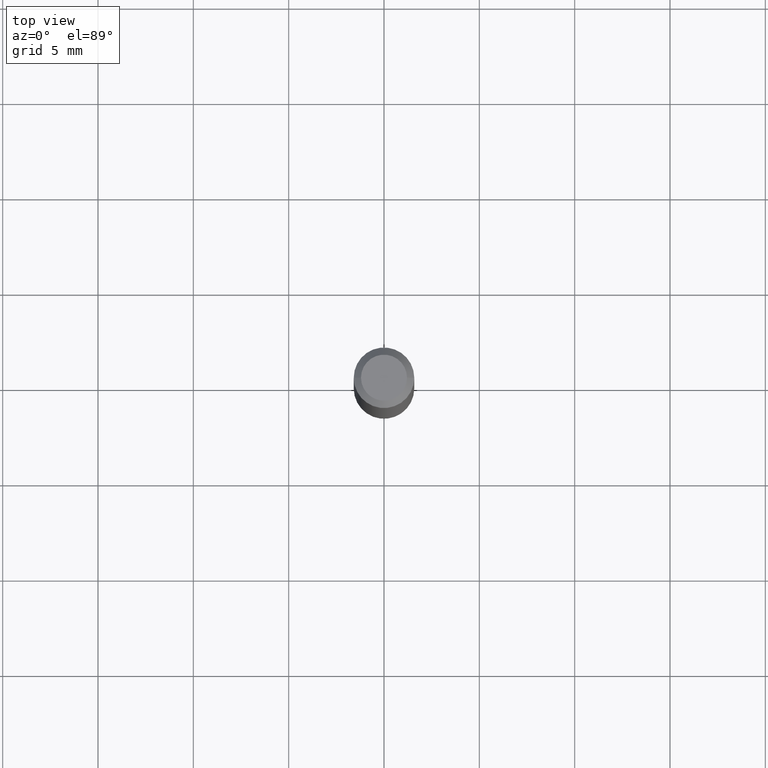
[diagram: clean part render]
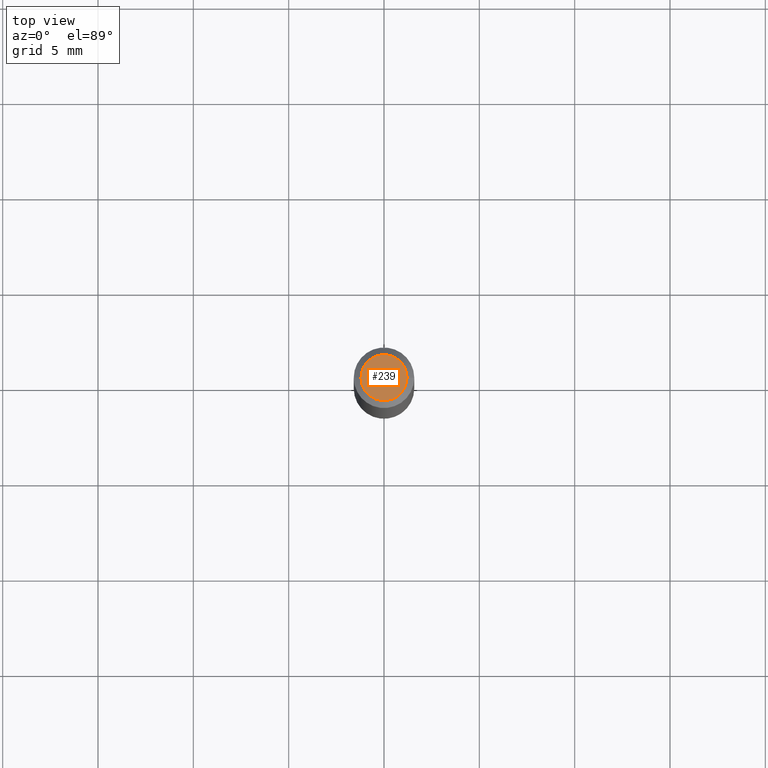
[diagram: same view with one face highlighted and labeled with its STEP entity id]
A machine part, top view. The second image highlights one B-rep face of the part: STEP entity #239.
In plain terms, the highlighted planar face has unit normal (0, -0, -1).
Its self-contained STEP definition (entity closure, byte-faithful):
#2 = VERTEX_POINT ( 'NONE', #63 ) ;
#52 = AXIS2_PLACEMENT_3D ( 'NONE', #355, #346, #74 ) ;
#63 = CARTESIAN_POINT ( 'NONE',  ( 0.04750000000000000749, -4.035134999187568762E-16, 2.731847993664288856E-16 ) ) ;
#74 = DIRECTION ( 'NONE',  ( 1.000000000000000000, -6.982962677686266711E-15, 4.852736867747365086E-29 ) ) ;
#113 = DIRECTION ( 'NONE',  ( 1.000000000000000000, -6.982962677686266711E-15, 4.852736867747365086E-29 ) ) ;
#156 = CARTESIAN_POINT ( 'NONE',  ( -6.680649051745406845E-45, 9.538196290434862081E-31, 2.731847993664263218E-16 ) ) ;
#166 = EDGE_CURVE ( 'NONE', #340, #2, #192, .T. ) ;
#183 = AXIS2_PLACEMENT_3D ( 'NONE', #322, #237, #206 ) ;
#192 = CIRCLE ( 'NONE', #52, 0.04750000000000000749 ) ;
#201 = FACE_OUTER_BOUND ( 'NONE', #285, .T. ) ;
#206 = DIRECTION ( 'NONE',  ( -1.000000000000000000, 6.982962677686265922E-15, -4.876176775795935793E-29 ) ) ;
#232 = AXIS2_PLACEMENT_3D ( 'NONE', #156, #313, #113 ) ;
#237 = DIRECTION ( 'NONE',  ( 2.438088387897960049E-29, -3.491481338843145188E-15, -1.000000000000000000 ) ) ;
#239 = ADVANCED_FACE ( 'NONE', ( #201 ), #407, .F. ) ;
#244 = ORIENTED_EDGE ( 'NONE', *, *, #473, .T. ) ;
#285 = EDGE_LOOP ( 'NONE', ( #343, #244 ) ) ;
#313 = DIRECTION ( 'NONE',  ( -2.445468806185136597E-29, 3.491481338843145583E-15, 1.000000000000000000 ) ) ;
#322 = CARTESIAN_POINT ( 'NONE',  ( 3.316907271900976589E-16, 0.04750000000000000749, -2.925296391183627249E-17 ) ) ;
#340 = VERTEX_POINT ( 'NONE', #509 ) ;
#343 = ORIENTED_EDGE ( 'NONE', *, *, #166, .T. ) ;
#346 = DIRECTION ( 'NONE',  ( -2.445468806185136597E-29, 3.491481338843145583E-15, 1.000000000000000000 ) ) ;
#355 = CARTESIAN_POINT ( 'NONE',  ( -6.680649051745406845E-45, 9.538196290434862081E-31, 2.731847993664263218E-16 ) ) ;
#407 = PLANE ( 'NONE',  #183 ) ;
#419 = CIRCLE ( 'NONE', #232, 0.04750000000000000749 ) ;
#473 = EDGE_CURVE ( 'NONE', #2, #340, #419, .T. ) ;
#509 = CARTESIAN_POINT ( 'NONE',  ( -0.04750000000000000749, 3.578768372314221353E-16, 2.731847993664239060E-16 ) ) ;